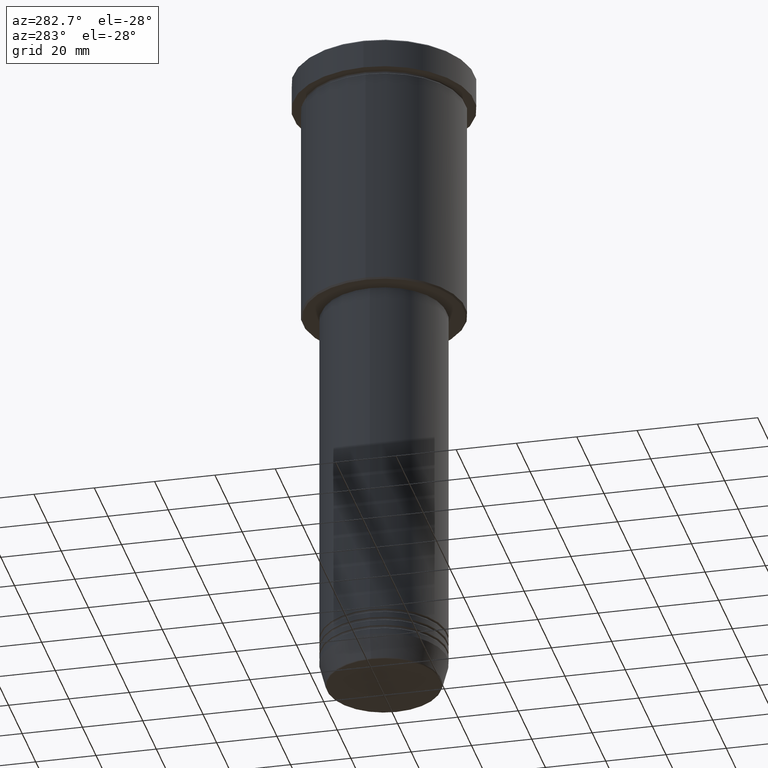
[diagram: clean part render]
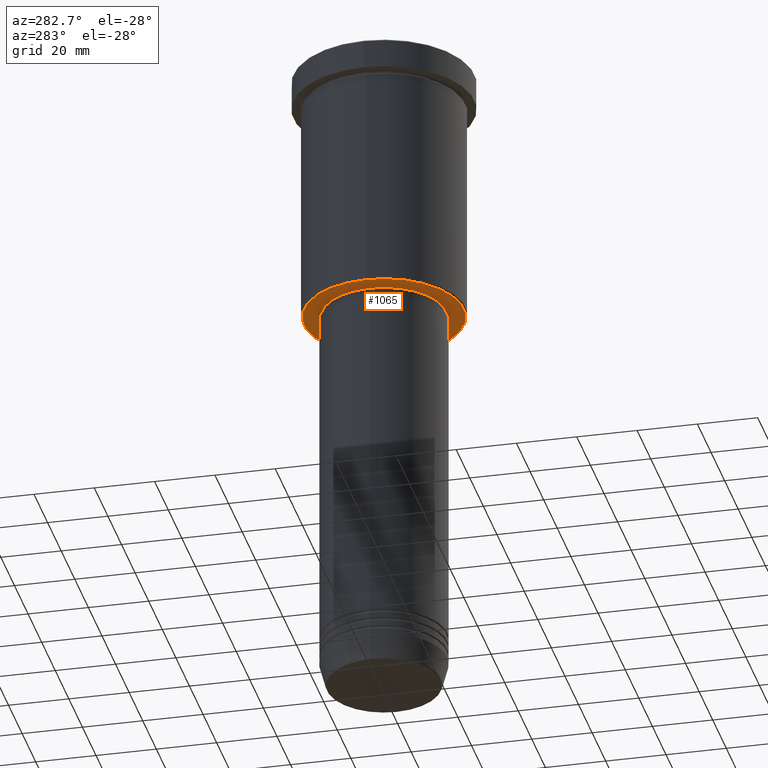
[diagram: same view with one face highlighted and labeled with its STEP entity id]
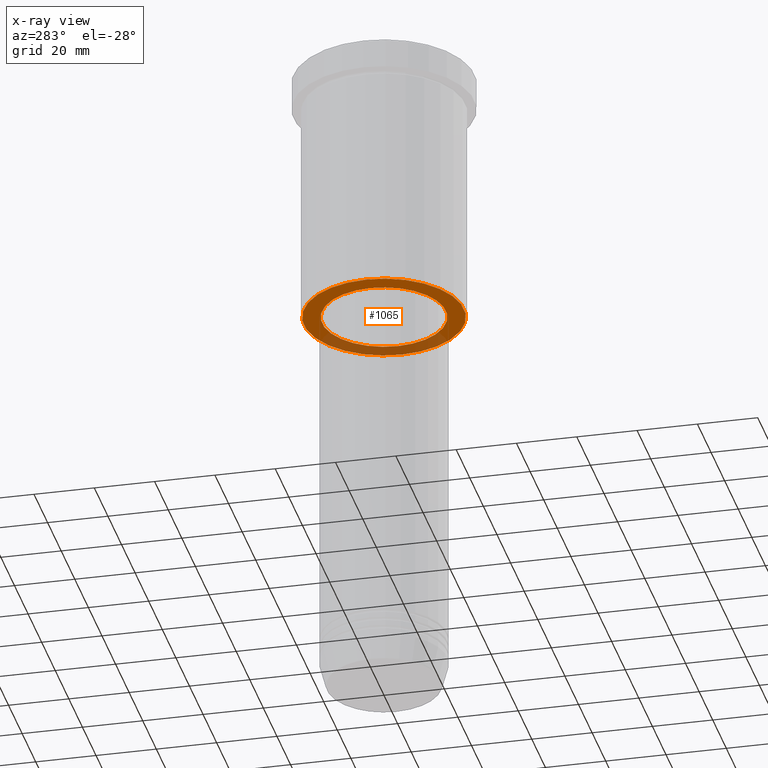
[diagram: x-ray of the same camera — body ghosted, the highlighted face saturated]
A machine part, auxiliary view. The second image highlights one B-rep face of the part: STEP entity #1065.
The next image is the same camera in x-ray: the body ghosted, the highlighted face saturated — about 31% of this face is hidden behind the body in this view.
In plain terms, the highlighted planar face has unit normal (0, 0, -1).
Its self-contained STEP definition (entity closure, byte-faithful):
#5 = DIRECTION ( 'NONE',  ( 0.000000000000000000, 0.000000000000000000, -1.000000000000000000 ) ) ;
#28 = CARTESIAN_POINT ( 'NONE',  ( 0.000000000000000000, 0.000000000000000000, -85.99999999999998579 ) ) ;
#32 = CIRCLE ( 'NONE', #79, 20.50000000000000000 ) ;
#36 = VERTEX_POINT ( 'NONE', #590 ) ;
#74 = CIRCLE ( 'NONE', #923, 26.50000000000002487 ) ;
#79 = AXIS2_PLACEMENT_3D ( 'NONE', #730, #743, #1172 ) ;
#86 = VERTEX_POINT ( 'NONE', #185 ) ;
#88 = DIRECTION ( 'NONE',  ( -1.000000000000000000, 0.000000000000000000, 0.000000000000000000 ) ) ;
#116 = EDGE_LOOP ( 'NONE', ( #860, #312 ) ) ;
#131 = ORIENTED_EDGE ( 'NONE', *, *, #447, .T. ) ;
#150 = AXIS2_PLACEMENT_3D ( 'NONE', #423, #795, #979 ) ;
#172 = VERTEX_POINT ( 'NONE', #1142 ) ;
#185 = CARTESIAN_POINT ( 'NONE',  ( -20.50000000000000000, 2.510525938252074481E-15, -85.99999999999998579 ) ) ;
#236 = EDGE_CURVE ( 'NONE', #172, #86, #1041, .T. ) ;
#258 = EDGE_CURVE ( 'NONE', #36, #976, #473, .T. ) ;
#312 = ORIENTED_EDGE ( 'NONE', *, *, #1077, .T. ) ;
#397 = AXIS2_PLACEMENT_3D ( 'NONE', #446, #1081, #830 ) ;
#423 = CARTESIAN_POINT ( 'NONE',  ( 0.000000000000000000, 0.000000000000000000, -85.99999999999998579 ) ) ;
#446 = CARTESIAN_POINT ( 'NONE',  ( 0.000000000000000000, 27.00000000000000355, -85.99999999999998579 ) ) ;
#447 = EDGE_CURVE ( 'NONE', #976, #36, #74, .T. ) ;
#473 = CIRCLE ( 'NONE', #725, 26.50000000000002487 ) ;
#571 = ORIENTED_EDGE ( 'NONE', *, *, #258, .T. ) ;
#590 = CARTESIAN_POINT ( 'NONE',  ( 26.50000000000002487, 0.000000000000000000, -85.99999999999998579 ) ) ;
#613 = CARTESIAN_POINT ( 'NONE',  ( -26.50000000000002487, 3.275930187719171524E-15, -85.99999999999998579 ) ) ;
#650 = DIRECTION ( 'NONE',  ( -1.000000000000000000, 0.000000000000000000, 0.000000000000000000 ) ) ;
#725 = AXIS2_PLACEMENT_3D ( 'NONE', #726, #5, #88 ) ;
#726 = CARTESIAN_POINT ( 'NONE',  ( 0.000000000000000000, 0.000000000000000000, -85.99999999999998579 ) ) ;
#730 = CARTESIAN_POINT ( 'NONE',  ( 0.000000000000000000, 0.000000000000000000, -85.99999999999998579 ) ) ;
#743 = DIRECTION ( 'NONE',  ( -0.000000000000000000, -0.000000000000000000, 1.000000000000000000 ) ) ;
#795 = DIRECTION ( 'NONE',  ( -0.000000000000000000, -0.000000000000000000, 1.000000000000000000 ) ) ;
#830 = DIRECTION ( 'NONE',  ( -1.000000000000000000, 0.000000000000000000, -0.000000000000000000 ) ) ;
#833 = FACE_OUTER_BOUND ( 'NONE', #877, .T. ) ;
#835 = DIRECTION ( 'NONE',  ( 0.000000000000000000, 0.000000000000000000, -1.000000000000000000 ) ) ;
#860 = ORIENTED_EDGE ( 'NONE', *, *, #236, .T. ) ;
#877 = EDGE_LOOP ( 'NONE', ( #571, #131 ) ) ;
#923 = AXIS2_PLACEMENT_3D ( 'NONE', #28, #835, #650 ) ;
#976 = VERTEX_POINT ( 'NONE', #613 ) ;
#979 = DIRECTION ( 'NONE',  ( 1.000000000000000000, 0.000000000000000000, 0.000000000000000000 ) ) ;
#999 = PLANE ( 'NONE',  #397 ) ;
#1009 = FACE_BOUND ( 'NONE', #116, .T. ) ;
#1041 = CIRCLE ( 'NONE', #150, 20.50000000000000000 ) ;
#1065 = ADVANCED_FACE ( 'NONE', ( #833, #1009 ), #999, .T. ) ;
#1077 = EDGE_CURVE ( 'NONE', #86, #172, #32, .T. ) ;
#1081 = DIRECTION ( 'NONE',  ( 0.000000000000000000, 0.000000000000000000, -1.000000000000000000 ) ) ;
#1142 = CARTESIAN_POINT ( 'NONE',  ( 20.50000000000000000, 0.000000000000000000, -85.99999999999998579 ) ) ;
#1172 = DIRECTION ( 'NONE',  ( 1.000000000000000000, 0.000000000000000000, 0.000000000000000000 ) ) ;